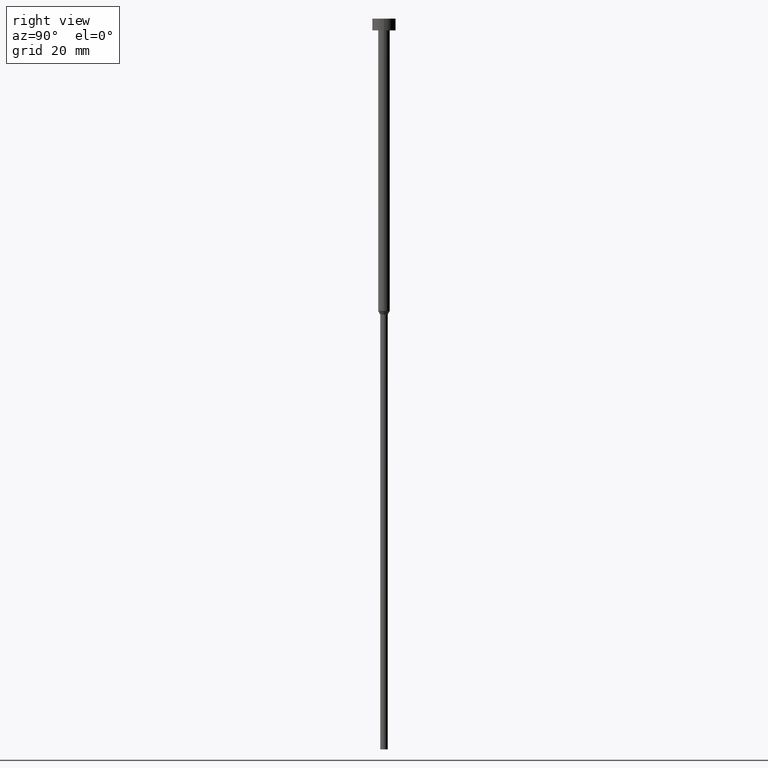
[diagram: clean part render]
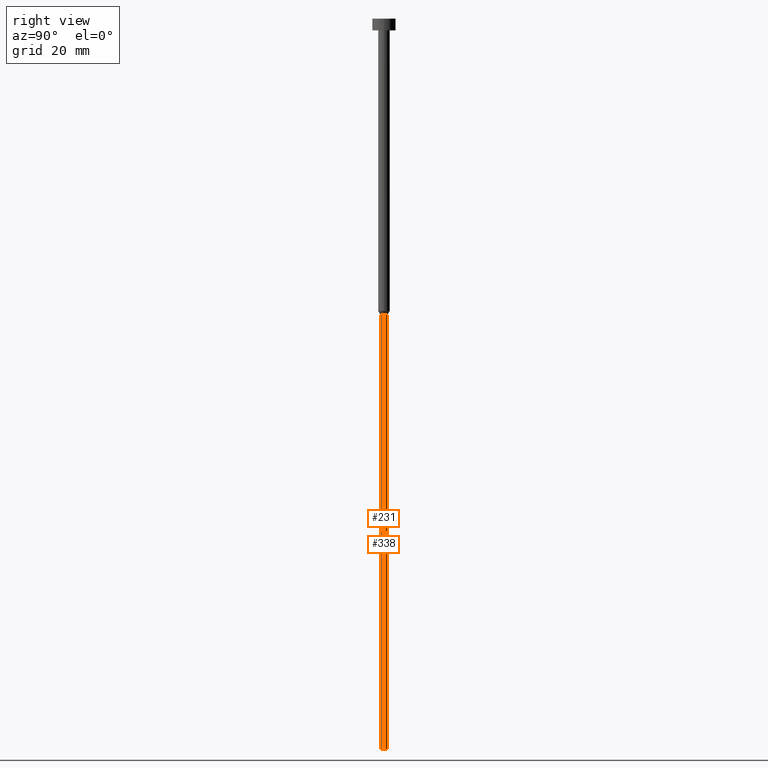
[diagram: same view with one multi-face feature highlighted, each face labeled with its STEP entity id]
A machine part, right view. The highlighted faces form ONE feature: a constant-radius fillet chain: 2 tangent blend faces with common blend radius 0.65 mm. The faces share edges in the B-rep.
Their STEP definitions:
[1] entity #231 (Cylinder):
#13 = VECTOR ( 'NONE', #336, 1000.000000000000000 ) ;
#15 = CARTESIAN_POINT ( 'NONE',  ( 0.6500000000000000222, 0.000000000000000000, 0.000000000000000000 ) ) ;
#16 = CIRCLE ( 'NONE', #235, 0.6500000000000000222 ) ;
#19 = DIRECTION ( 'NONE',  ( 1.000000000000000000, 0.000000000000000000, 0.000000000000000000 ) ) ;
#24 = DIRECTION ( 'NONE',  ( -0.000000000000000000, -0.000000000000000000, 1.000000000000000000 ) ) ;
#26 = DIRECTION ( 'NONE',  ( -0.000000000000000000, -0.000000000000000000, 1.000000000000000000 ) ) ;
#36 = EDGE_CURVE ( 'NONE', #141, #224, #68, .T. ) ;
#68 = LINE ( 'NONE', #15, #13 ) ;
#80 = FACE_OUTER_BOUND ( 'NONE', #326, .T. ) ;
#86 = VERTEX_POINT ( 'NONE', #318 ) ;
#100 = CARTESIAN_POINT ( 'NONE',  ( -0.6500000000000000222, 7.960204194457795477E-17, -125.0000000000000000 ) ) ;
#106 = DIRECTION ( 'NONE',  ( 1.000000000000000000, 0.000000000000000000, 0.000000000000000000 ) ) ;
#116 = VERTEX_POINT ( 'NONE', #100 ) ;
#130 = DIRECTION ( 'NONE',  ( 1.000000000000000000, 0.000000000000000000, 0.000000000000000000 ) ) ;
#136 = CARTESIAN_POINT ( 'NONE',  ( 0.6500000000000000222, 0.000000000000000000, -50.60621778264911086 ) ) ;
#141 = VERTEX_POINT ( 'NONE', #292 ) ;
#149 = CIRCLE ( 'NONE', #167, 0.6500000000000000222 ) ;
#161 = EDGE_CURVE ( 'NONE', #86, #224, #149, .T. ) ;
#162 = DIRECTION ( 'NONE',  ( -0.000000000000000000, -0.000000000000000000, 1.000000000000000000 ) ) ;
#167 = AXIS2_PLACEMENT_3D ( 'NONE', #344, #24, #130 ) ;
#182 = EDGE_CURVE ( 'NONE', #116, #86, #234, .T. ) ;
#198 = CYLINDRICAL_SURFACE ( 'NONE', #355, 0.6500000000000000222 ) ;
#200 = ORIENTED_EDGE ( 'NONE', *, *, #208, .T. ) ;
#208 = EDGE_CURVE ( 'NONE', #116, #141, #16, .T. ) ;
#214 = CARTESIAN_POINT ( 'NONE',  ( -0.6500000000000000222, 7.960204194457795477E-17, 0.000000000000000000 ) ) ;
#223 = ORIENTED_EDGE ( 'NONE', *, *, #36, .T. ) ;
#224 = VERTEX_POINT ( 'NONE', #136 ) ;
#231 = ADVANCED_FACE ( 'NONE', ( #80 ), #198, .T. ) ;
#234 = LINE ( 'NONE', #214, #293 ) ;
#235 = AXIS2_PLACEMENT_3D ( 'NONE', #260, #162, #19 ) ;
#260 = CARTESIAN_POINT ( 'NONE',  ( 0.000000000000000000, 0.000000000000000000, -125.0000000000000000 ) ) ;
#272 = ORIENTED_EDGE ( 'NONE', *, *, #161, .F. ) ;
#275 = CARTESIAN_POINT ( 'NONE',  ( 0.000000000000000000, 0.000000000000000000, 0.000000000000000000 ) ) ;
#292 = CARTESIAN_POINT ( 'NONE',  ( 0.6500000000000000222, 0.000000000000000000, -125.0000000000000000 ) ) ;
#293 = VECTOR ( 'NONE', #26, 1000.000000000000000 ) ;
#299 = ORIENTED_EDGE ( 'NONE', *, *, #182, .F. ) ;
#318 = CARTESIAN_POINT ( 'NONE',  ( -0.6500000000000000222, 7.960204194457795477E-17, -50.60621778264911086 ) ) ;
#326 = EDGE_LOOP ( 'NONE', ( #299, #200, #223, #272 ) ) ;
#336 = DIRECTION ( 'NONE',  ( -0.000000000000000000, -0.000000000000000000, 1.000000000000000000 ) ) ;
#344 = CARTESIAN_POINT ( 'NONE',  ( 0.000000000000000000, 0.000000000000000000, -50.60621778264911086 ) ) ;
#347 = DIRECTION ( 'NONE',  ( -0.000000000000000000, -0.000000000000000000, 1.000000000000000000 ) ) ;
#355 = AXIS2_PLACEMENT_3D ( 'NONE', #275, #347, #106 ) ;
[2] entity #338 (Cylinder):
#7 = CARTESIAN_POINT ( 'NONE',  ( 0.000000000000000000, 0.000000000000000000, 0.000000000000000000 ) ) ;
#9 = ORIENTED_EDGE ( 'NONE', *, *, #182, .T. ) ;
#13 = VECTOR ( 'NONE', #336, 1000.000000000000000 ) ;
#14 = DIRECTION ( 'NONE',  ( 1.000000000000000000, 0.000000000000000000, 0.000000000000000000 ) ) ;
#15 = CARTESIAN_POINT ( 'NONE',  ( 0.6500000000000000222, 0.000000000000000000, 0.000000000000000000 ) ) ;
#17 = EDGE_CURVE ( 'NONE', #224, #86, #139, .T. ) ;
#26 = DIRECTION ( 'NONE',  ( -0.000000000000000000, -0.000000000000000000, 1.000000000000000000 ) ) ;
#31 = ORIENTED_EDGE ( 'NONE', *, *, #36, .F. ) ;
#34 = ORIENTED_EDGE ( 'NONE', *, *, #328, .T. ) ;
#36 = EDGE_CURVE ( 'NONE', #141, #224, #68, .T. ) ;
#45 = CARTESIAN_POINT ( 'NONE',  ( 0.000000000000000000, 0.000000000000000000, -125.0000000000000000 ) ) ;
#54 = AXIS2_PLACEMENT_3D ( 'NONE', #45, #207, #14 ) ;
#66 = CARTESIAN_POINT ( 'NONE',  ( 0.000000000000000000, 0.000000000000000000, -50.60621778264911086 ) ) ;
#68 = LINE ( 'NONE', #15, #13 ) ;
#79 = EDGE_LOOP ( 'NONE', ( #34, #9, #176, #31 ) ) ;
#86 = VERTEX_POINT ( 'NONE', #318 ) ;
#87 = CYLINDRICAL_SURFACE ( 'NONE', #325, 0.6500000000000000222 ) ;
#95 = DIRECTION ( 'NONE',  ( -0.000000000000000000, -0.000000000000000000, 1.000000000000000000 ) ) ;
#96 = FACE_OUTER_BOUND ( 'NONE', #79, .T. ) ;
#97 = DIRECTION ( 'NONE',  ( 1.000000000000000000, 0.000000000000000000, 0.000000000000000000 ) ) ;
#100 = CARTESIAN_POINT ( 'NONE',  ( -0.6500000000000000222, 7.960204194457795477E-17, -125.0000000000000000 ) ) ;
#116 = VERTEX_POINT ( 'NONE', #100 ) ;
#122 = DIRECTION ( 'NONE',  ( -0.000000000000000000, -0.000000000000000000, 1.000000000000000000 ) ) ;
#136 = CARTESIAN_POINT ( 'NONE',  ( 0.6500000000000000222, 0.000000000000000000, -50.60621778264911086 ) ) ;
#139 = CIRCLE ( 'NONE', #164, 0.6500000000000000222 ) ;
#141 = VERTEX_POINT ( 'NONE', #292 ) ;
#164 = AXIS2_PLACEMENT_3D ( 'NONE', #66, #95, #97 ) ;
#176 = ORIENTED_EDGE ( 'NONE', *, *, #17, .F. ) ;
#182 = EDGE_CURVE ( 'NONE', #116, #86, #234, .T. ) ;
#202 = DIRECTION ( 'NONE',  ( 1.000000000000000000, 0.000000000000000000, 0.000000000000000000 ) ) ;
#207 = DIRECTION ( 'NONE',  ( -0.000000000000000000, -0.000000000000000000, 1.000000000000000000 ) ) ;
#213 = CIRCLE ( 'NONE', #54, 0.6500000000000000222 ) ;
#214 = CARTESIAN_POINT ( 'NONE',  ( -0.6500000000000000222, 7.960204194457795477E-17, 0.000000000000000000 ) ) ;
#224 = VERTEX_POINT ( 'NONE', #136 ) ;
#234 = LINE ( 'NONE', #214, #293 ) ;
#292 = CARTESIAN_POINT ( 'NONE',  ( 0.6500000000000000222, 0.000000000000000000, -125.0000000000000000 ) ) ;
#293 = VECTOR ( 'NONE', #26, 1000.000000000000000 ) ;
#318 = CARTESIAN_POINT ( 'NONE',  ( -0.6500000000000000222, 7.960204194457795477E-17, -50.60621778264911086 ) ) ;
#325 = AXIS2_PLACEMENT_3D ( 'NONE', #7, #122, #202 ) ;
#328 = EDGE_CURVE ( 'NONE', #141, #116, #213, .T. ) ;
#336 = DIRECTION ( 'NONE',  ( -0.000000000000000000, -0.000000000000000000, 1.000000000000000000 ) ) ;
#338 = ADVANCED_FACE ( 'NONE', ( #96 ), #87, .T. ) ;